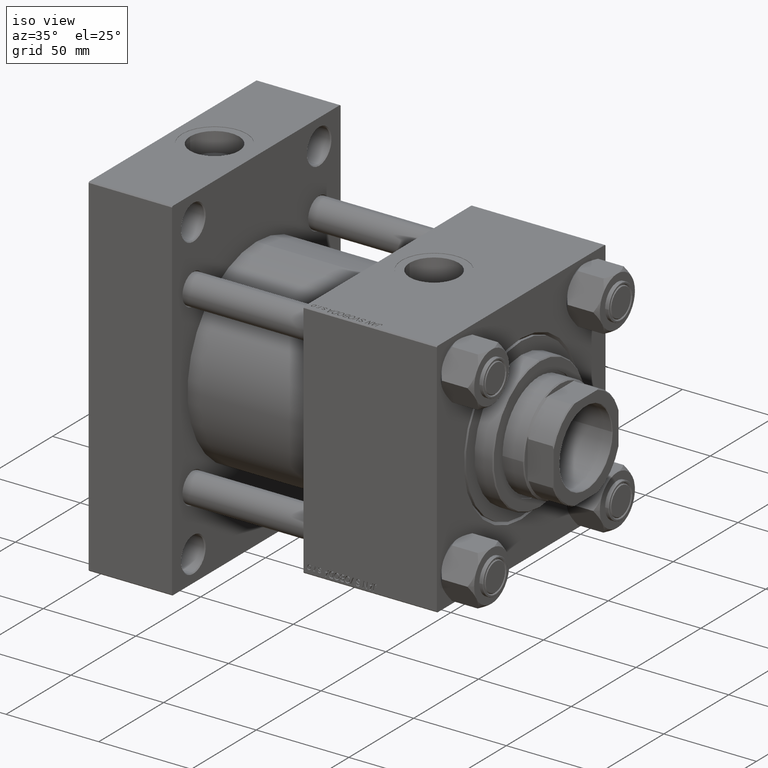
[diagram: clean part render]
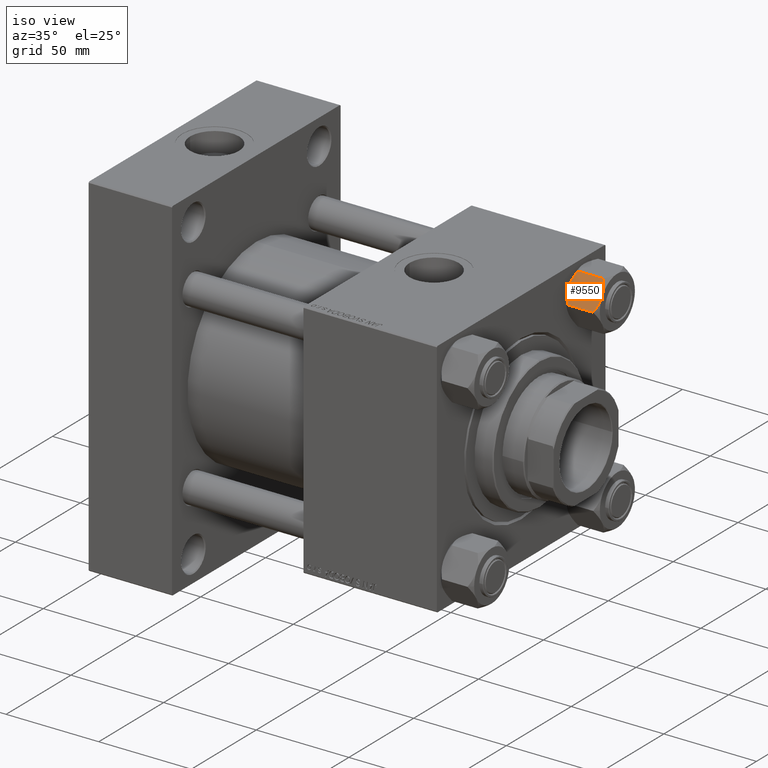
[diagram: same view with one face highlighted and labeled with its STEP entity id]
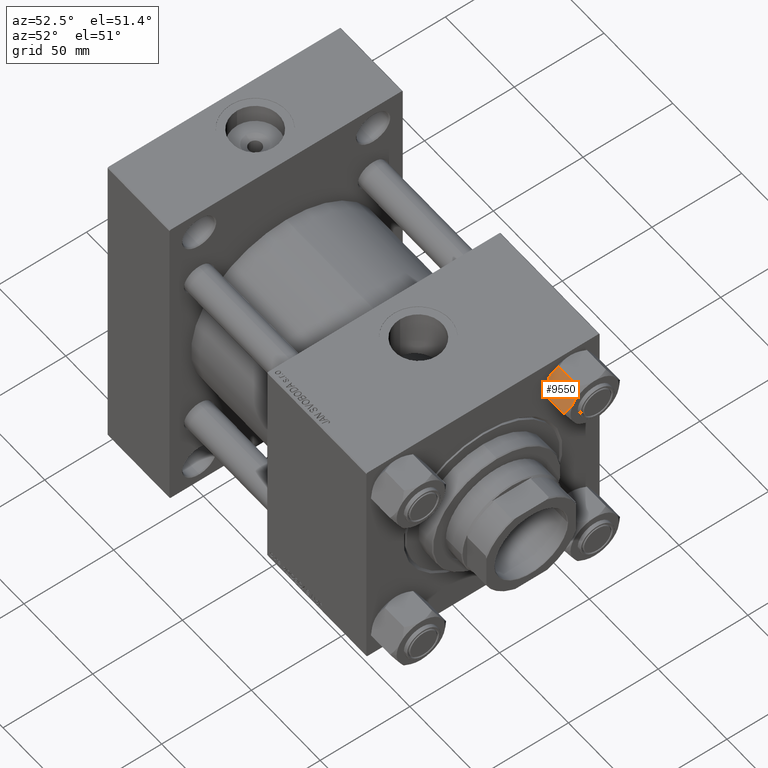
[diagram: same view with one face highlighted and labeled with its STEP entity id]
A machine part, iso view. The second image highlights one B-rep face of the part: STEP entity #9550.
A second angle (auxiliary view) of the same face is appended — the face is thin or edge-on in the first view.
In plain terms, the highlighted planar face has unit normal (0, 0.866, -0.5).
Its self-contained STEP definition (entity closure, byte-faithful):
#834 = ORIENTED_EDGE ( 'NONE', *, *, #6480, .T. ) ;
#1347 = DIRECTION ( 'NONE',  ( -0.4999999999999999445, -0.8660254037844387076, 0.000000000000000000 ) ) ;
#1895 = CARTESIAN_POINT ( 'NONE',  ( -12.37702203890362362, 5.617002596445057172, -3.577867169202160688E-15 ) ) ;
#2473 = FACE_OUTER_BOUND ( 'NONE', #35451, .T. ) ;
#2765 = ORIENTED_EDGE ( 'NONE', *, *, #46808, .F. ) ;
#3510 = CARTESIAN_POINT ( 'NONE',  ( -11.71499999999999631, 6.763658403556463306, 0.000000000000000000 ) ) ;
#3766 = EDGE_CURVE ( 'NONE', #52245, #21626, #42005, .T. ) ;
#4201 = CARTESIAN_POINT ( 'NONE',  ( -11.71499999999999631, 6.763658403556463306, -18.00000000000000000 ) ) ;
#5015 = VERTEX_POINT ( 'NONE', #8694 ) ;
#5073 = EDGE_CURVE ( 'NONE', #21626, #7037, #20207, .T. ) ;
#5208 = ORIENTED_EDGE ( 'NONE', *, *, #5073, .F. ) ;
#6480 = EDGE_CURVE ( 'NONE', #52245, #42503, #33532, .T. ) ;
#7037 = VERTEX_POINT ( 'NONE', #32114 ) ;
#7480 = CARTESIAN_POINT ( 'NONE',  ( -11.38181071908714515, 7.340759166634867938, -4.045429356086536842E-15 ) ) ;
#7731 = ORIENTED_EDGE ( 'NONE', *, *, #10552, .F. ) ;
#8165 = VERTEX_POINT ( 'NONE', #39027 ) ;
#8173 = CARTESIAN_POINT ( 'NONE',  ( -10.40215497533437805, 9.037572688741343896, -17.80281335400754372 ) ) ;
#8268 = CARTESIAN_POINT ( 'NONE',  ( -7.809999999999996945, 13.52731680711293727, -16.00000000000000000 ) ) ;
#8694 = CARTESIAN_POINT ( 'NONE',  ( -11.71499999999999631, 6.763658403556463306, 0.000000000000000000 ) ) ;
#8714 = ORIENTED_EDGE ( 'NONE', *, *, #3766, .F. ) ;
#9018 = LINE ( 'NONE', #49941, #12356 ) ;
#9550 = ADVANCED_FACE ( 'NONE', ( #2473 ), #47388, .F. ) ;
#9564 = CARTESIAN_POINT ( 'NONE',  ( -15.22736220980734778, 0.6800686015852358546, -1.706311779141444163 ) ) ;
#10552 = EDGE_CURVE ( 'NONE', #5015, #39870, #17637, .T. ) ;
#10926 = DIRECTION ( 'NONE',  ( 0.4999999999999998890, 0.8660254037844385966, 0.000000000000000000 ) ) ;
#11315 = LINE ( 'NONE', #14741, #15727 ) ;
#12356 = VECTOR ( 'NONE', #1347, 999.9999999999998863 ) ;
#12651 = B_SPLINE_CURVE_WITH_KNOTS ( 'NONE', 3,
 ( #15673, #28787, #48883, #16906, #47647, #36701, #7480, #3510 ),
 .UNSPECIFIED., .F., .F.,
 ( 4, 2, 2, 4 ),
 ( 4.472842641874880181E-07, 0.003945636373369299649, 0.005918230917921853997, 0.007890825462474408344 ),
 .UNSPECIFIED. ) ;
#12793 = DIRECTION ( 'NONE',  ( -0.4999999999999999445, -0.8660254037844387076, 0.000000000000000000 ) ) ;
#13525 = CARTESIAN_POINT ( 'NONE',  ( -14.30591678195075644, 2.276058899034906435, -0.9473872146228152769 ) ) ;
#13530 = CARTESIAN_POINT ( 'NONE',  ( -7.903528262322682352, 13.36532110482641400, -16.00000000000000000 ) ) ;
#14741 = CARTESIAN_POINT ( 'NONE',  ( -7.809999999999996945, 13.52731680711293727, -18.00000000000000000 ) ) ;
#15673 = CARTESIAN_POINT ( 'NONE',  ( -7.903528262322682352, 13.36532110482641400, -2.000000000000000000 ) ) ;
#15727 = VECTOR ( 'NONE', #51208, 1000.000000000000000 ) ;
#16906 = CARTESIAN_POINT ( 'NONE',  ( -10.06459418565412456, 9.622245127110602425, -0.3836066851120624177 ) ) ;
#17637 = B_SPLINE_CURVE_WITH_KNOTS ( 'NONE', 3,
 ( #33601, #1895, #34377, #33335, #13525, #42307, #9564, #50242 ),
 .UNSPECIFIED., .F., .F.,
 ( 4, 2, 2, 4 ),
 ( 0.007890825462474408344, 0.01181022244528551549, 0.01376992093669106992, 0.01572961942809662436 ),
 .UNSPECIFIED. ) ;
#17671 = CARTESIAN_POINT ( 'NONE',  ( -14.31545111198820663, 2.259544954993902177, -17.08577173959729123 ) ) ;
#18447 = CARTESIAN_POINT ( 'NONE',  ( -11.71499999999999631, 6.763658403556463306, -18.00000000000000000 ) ) ;
#18505 = CARTESIAN_POINT ( 'NONE',  ( -15.61999999999999567, 8.023367828467702033E-15, -16.00000000000000000 ) ) ;
#20207 = B_SPLINE_CURVE_WITH_KNOTS ( 'NONE', 3,
 ( #24555, #29286, #17671, #25327, #26615, #41951, #26353, #18447 ),
 .UNSPECIFIED., .F., .F.,
 ( 4, 2, 2, 4 ),
 ( 4.472842641925297170E-07, 0.003945636373369303118, 0.005918230917921858333, 0.007890825462474413549 ),
 .UNSPECIFIED. ) ;
#20572 = ORIENTED_EDGE ( 'NONE', *, *, #49746, .F. ) ;
#21143 = DIRECTION ( 'NONE',  ( -0.000000000000000000, -0.000000000000000000, 1.000000000000000000 ) ) ;
#21432 = VERTEX_POINT ( 'NONE', #13530 ) ;
#21591 = CARTESIAN_POINT ( 'NONE',  ( -15.61999999999999567, 8.023367828467702033E-15, -1.999999999999998224 ) ) ;
#21626 = VERTEX_POINT ( 'NONE', #44407 ) ;
#23766 = EDGE_CURVE ( 'NONE', #7037, #21432, #32832, .T. ) ;
#24553 = CARTESIAN_POINT ( 'NONE',  ( -11.05297796109638675, 7.910314210667875656, -17.99999999999999645 ) ) ;
#24555 = CARTESIAN_POINT ( 'NONE',  ( -15.52647173767731736, 0.1619957022865152474, -16.00000000000000000 ) ) ;
#25327 = CARTESIAN_POINT ( 'NONE',  ( -13.36540581434587693, 3.905071680002328183, -17.61639331488793658 ) ) ;
#25354 = CARTESIAN_POINT ( 'NONE',  ( -7.903528262322682352, 13.36532110482641400, -2.000000000000000000 ) ) ;
#25748 = LINE ( 'NONE', #41860, #46941 ) ;
#26353 = CARTESIAN_POINT ( 'NONE',  ( -12.04818928091285635, 6.186557640478062225, -17.99999999999999289 ) ) ;
#26615 = CARTESIAN_POINT ( 'NONE',  ( -13.04337073483127796, 4.462852799541088267, -17.75691532989869614 ) ) ;
#27609 = CARTESIAN_POINT ( 'NONE',  ( -15.61999999999999567, 8.023367828467702033E-15, -16.00000000000000000 ) ) ;
#28787 = CARTESIAN_POINT ( 'NONE',  ( -8.502393313253760354, 12.32805640973647598, -1.411989271640069488 ) ) ;
#29033 = VECTOR ( 'NONE', #12793, 999.9999999999998863 ) ;
#29286 = CARTESIAN_POINT ( 'NONE',  ( -14.92760668674624114, 1.199260397376460840, -16.58801072835992940 ) ) ;
#30244 = AXIS2_PLACEMENT_3D ( 'NONE', #34689, #43146, #10926 ) ;
#31751 = ORIENTED_EDGE ( 'NONE', *, *, #41030, .F. ) ;
#31985 = VECTOR ( 'NONE', #21143, 1000.000000000000000 ) ;
#32114 = CARTESIAN_POINT ( 'NONE',  ( -11.71499999999999631, 6.763658403556463306, -18.00000000000000000 ) ) ;
#32477 = EDGE_CURVE ( 'NONE', #35665, #5015, #12651, .T. ) ;
#32832 = B_SPLINE_CURVE_WITH_KNOTS ( 'NONE', 3,
 ( #4201, #24553, #8173, #44364, #48338, #36421, #48859, #41430 ),
 .UNSPECIFIED., .F., .F.,
 ( 4, 2, 2, 4 ),
 ( 0.007890825462474413549, 0.01181022244528551549, 0.01376992093669106992, 0.01572961942809662436 ),
 .UNSPECIFIED. ) ;
#32924 = CARTESIAN_POINT ( 'NONE',  ( -15.52647173767731736, 0.1619957022865152474, -2.000000000000000000 ) ) ;
#33335 = CARTESIAN_POINT ( 'NONE',  ( -13.99051971937273287, 2.822342635978016379, -0.7317196846281162070 ) ) ;
#33532 = LINE ( 'NONE', #49665, #31985 ) ;
#33601 = CARTESIAN_POINT ( 'NONE',  ( -11.71499999999999631, 6.763658403556463306, 0.000000000000000000 ) ) ;
#34377 = CARTESIAN_POINT ( 'NONE',  ( -13.02784502466562522, 4.489744118371592485, -0.1971866459924597748 ) ) ;
#34680 = ORIENTED_EDGE ( 'NONE', *, *, #23766, .F. ) ;
#34689 = CARTESIAN_POINT ( 'NONE',  ( -15.61999999999999567, 8.023367828467702033E-15, -18.00000000000000000 ) ) ;
#35451 = EDGE_LOOP ( 'NONE', ( #8714, #834, #2765, #7731, #45222, #31751, #20572, #44292, #34680, #5208 ) ) ;
#35665 = VERTEX_POINT ( 'NONE', #25354 ) ;
#36421 = CARTESIAN_POINT ( 'NONE',  ( -8.506059550806625680, 12.32170630002228684, -16.56553707812498288 ) ) ;
#36701 = CARTESIAN_POINT ( 'NONE',  ( -11.04378428799594580, 7.926238119586001218, -0.05089381635301955947 ) ) ;
#37870 = CARTESIAN_POINT ( 'NONE',  ( -15.61999999999999567, 8.023367828467702033E-15, -1.999999999999998224 ) ) ;
#38034 = DIRECTION ( 'NONE',  ( 0.4999999999999999445, 0.8660254037844387076, 0.000000000000000000 ) ) ;
#39027 = CARTESIAN_POINT ( 'NONE',  ( -7.809999999999996945, 13.52731680711293727, -1.999999999999998224 ) ) ;
#39870 = VERTEX_POINT ( 'NONE', #32924 ) ;
#41030 = EDGE_CURVE ( 'NONE', #8165, #35665, #50031, .T. ) ;
#41430 = CARTESIAN_POINT ( 'NONE',  ( -7.903528262322682352, 13.36532110482641400, -16.00000000000000000 ) ) ;
#41860 = CARTESIAN_POINT ( 'NONE',  ( -15.61999999999999567, 8.023367828467702033E-15, -16.00000000000000000 ) ) ;
#41951 = CARTESIAN_POINT ( 'NONE',  ( -12.38621571200405391, 5.601078687526930722, -17.94910618364698252 ) ) ;
#42005 = LINE ( 'NONE', #18505, #47920 ) ;
#42183 = VERTEX_POINT ( 'NONE', #8268 ) ;
#42307 = CARTESIAN_POINT ( 'NONE',  ( -14.92394044919337759, 1.205610507090642658, -1.434462921875004238 ) ) ;
#42503 = VERTEX_POINT ( 'NONE', #21591 ) ;
#43146 = DIRECTION ( 'NONE',  ( 0.8660254037844387076, -0.4999999999999999445, 0.000000000000000000 ) ) ;
#43642 = DIRECTION ( 'NONE',  ( 0.4999999999999999445, 0.8660254037844387076, 0.000000000000000000 ) ) ;
#44292 = ORIENTED_EDGE ( 'NONE', *, *, #50389, .F. ) ;
#44364 = CARTESIAN_POINT ( 'NONE',  ( -9.439480280627265074, 10.70497417113491601, -17.26828031537187869 ) ) ;
#44407 = CARTESIAN_POINT ( 'NONE',  ( -15.52647173767731736, 0.1619957022865152474, -16.00000000000000000 ) ) ;
#45222 = ORIENTED_EDGE ( 'NONE', *, *, #32477, .F. ) ;
#46808 = EDGE_CURVE ( 'NONE', #39870, #42503, #9018, .T. ) ;
#46941 = VECTOR ( 'NONE', #43642, 999.9999999999998863 ) ;
#47388 = PLANE ( 'NONE',  #30244 ) ;
#47647 = CARTESIAN_POINT ( 'NONE',  ( -10.38662926516872176, 9.064464007571844562, -0.2430846701013017475 ) ) ;
#47920 = VECTOR ( 'NONE', #38034, 999.9999999999998863 ) ;
#48338 = CARTESIAN_POINT ( 'NONE',  ( -9.124083218049243271, 11.25125790807802240, -17.05261278537717828 ) ) ;
#48859 = CARTESIAN_POINT ( 'NONE',  ( -8.202637790192651934, 12.84724820552769486, -16.29368822085855228 ) ) ;
#48883 = CARTESIAN_POINT ( 'NONE',  ( -9.114548888011789529, 11.26777185211903110, -0.9142282604026957804 ) ) ;
#49665 = CARTESIAN_POINT ( 'NONE',  ( -15.61999999999999567, 8.023367828467702033E-15, -18.00000000000000000 ) ) ;
#49746 = EDGE_CURVE ( 'NONE', #42183, #8165, #11315, .T. ) ;
#49941 = CARTESIAN_POINT ( 'NONE',  ( -15.61999999999999567, 8.023367828467702033E-15, -1.999999999999998224 ) ) ;
#50031 = LINE ( 'NONE', #37870, #29033 ) ;
#50242 = CARTESIAN_POINT ( 'NONE',  ( -15.52647173767731736, 0.1619957022865152474, -2.000000000000000000 ) ) ;
#50389 = EDGE_CURVE ( 'NONE', #21432, #42183, #25748, .T. ) ;
#51208 = DIRECTION ( 'NONE',  ( -0.000000000000000000, -0.000000000000000000, 1.000000000000000000 ) ) ;
#52245 = VERTEX_POINT ( 'NONE', #27609 ) ;